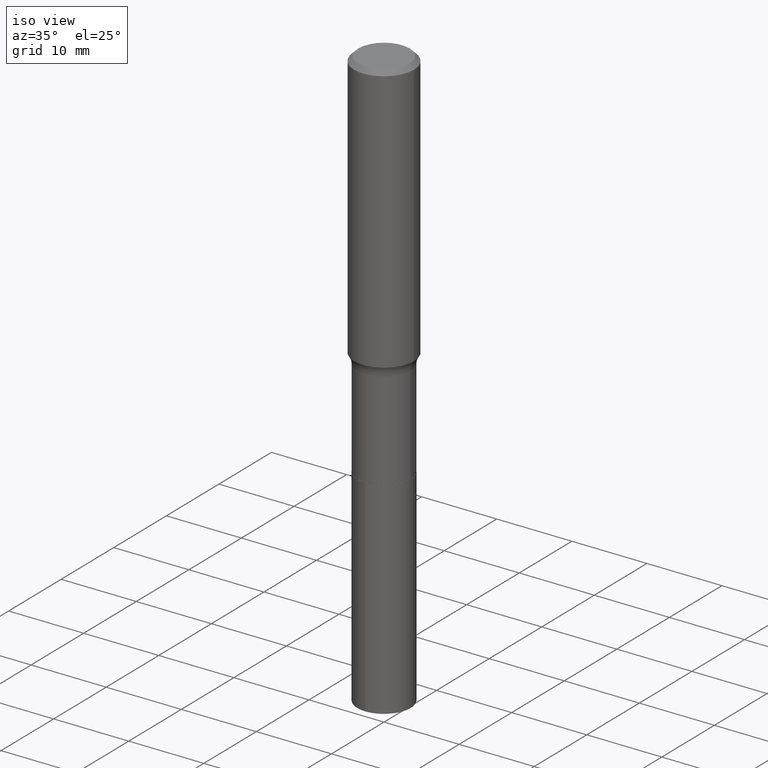
[diagram: clean part render]
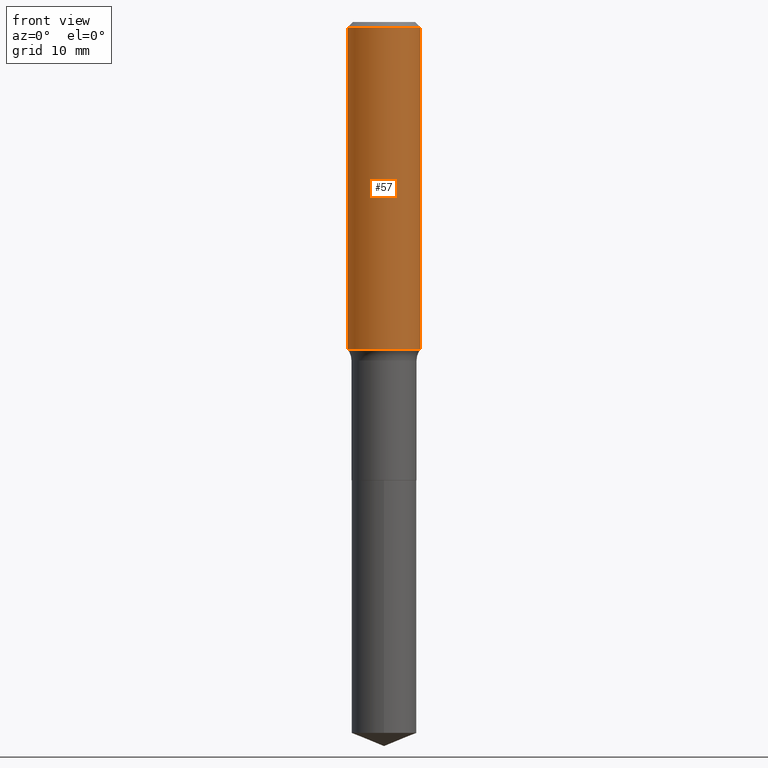
[diagram: tour spotlight — one face highlighted and labeled with its STEP entity id]
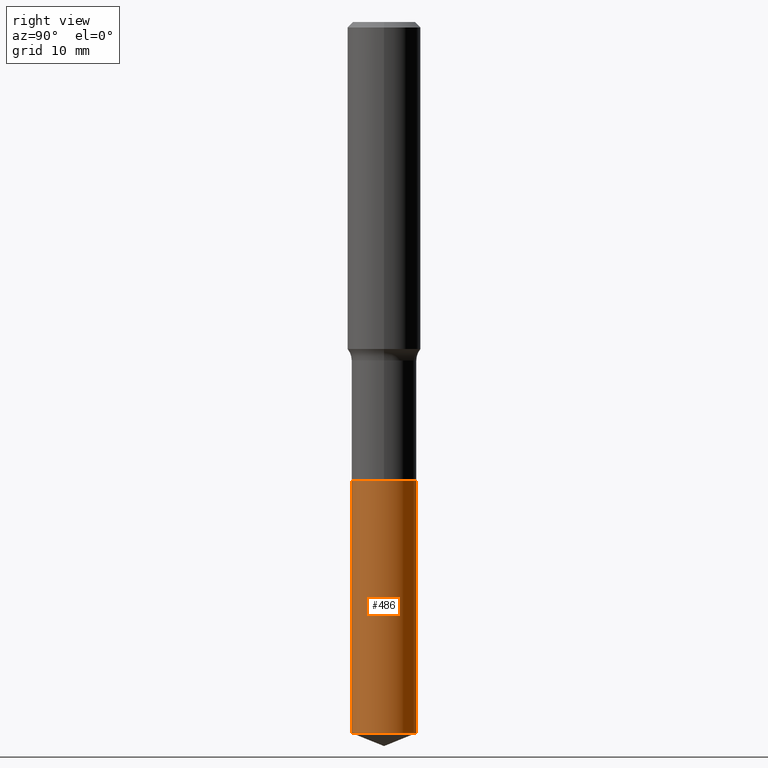
[diagram: tour spotlight — one face highlighted and labeled with its STEP entity id]
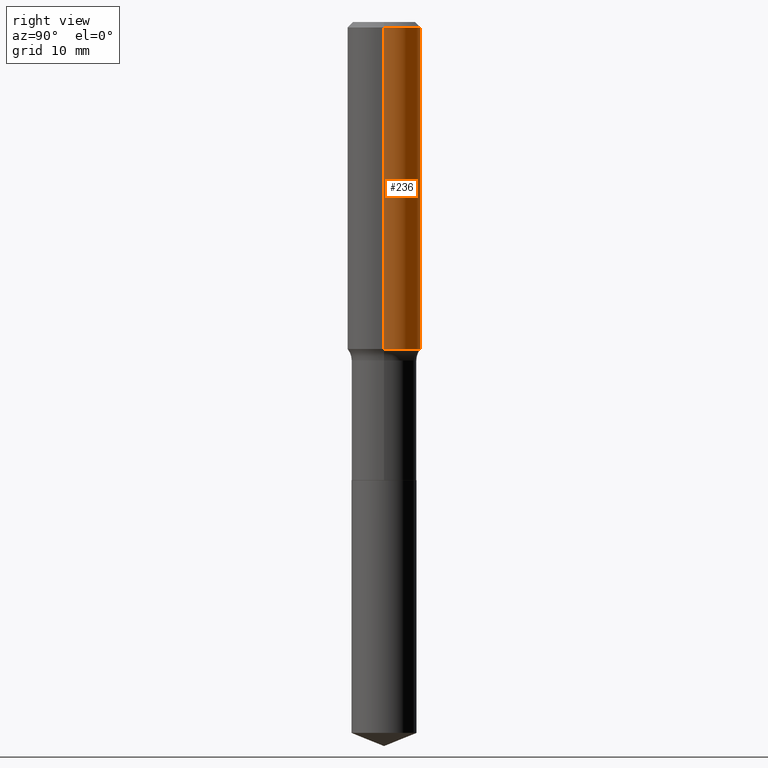
[diagram: tour spotlight — one face highlighted and labeled with its STEP entity id]
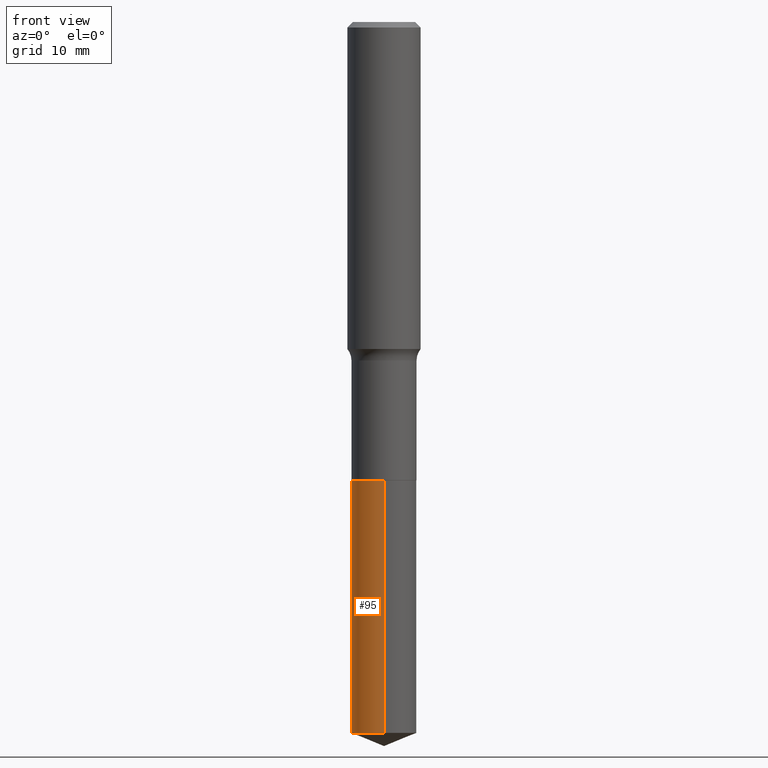
[diagram: tour spotlight — one face highlighted and labeled with its STEP entity id]
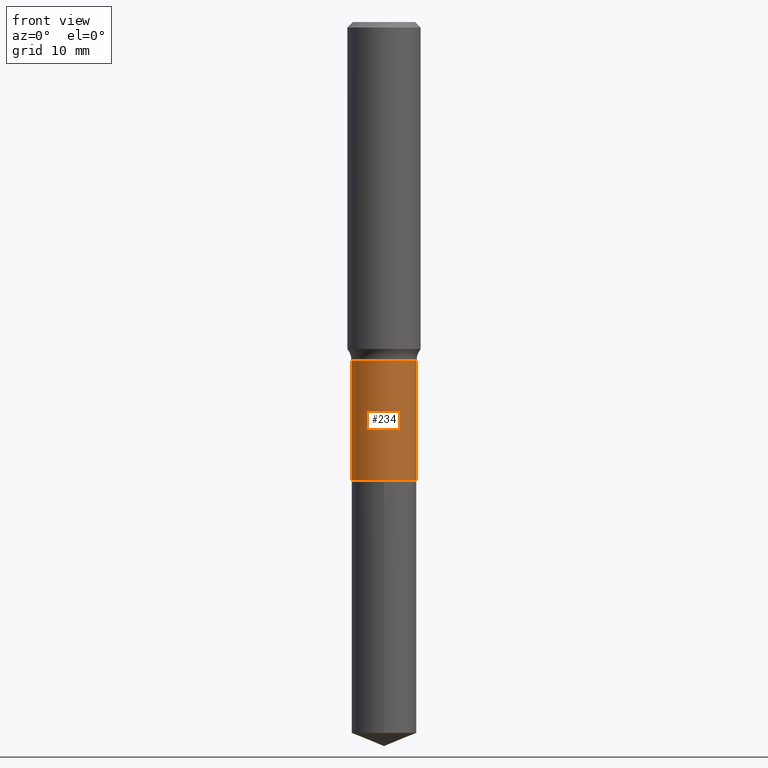
[diagram: tour spotlight — one face highlighted and labeled with its STEP entity id]
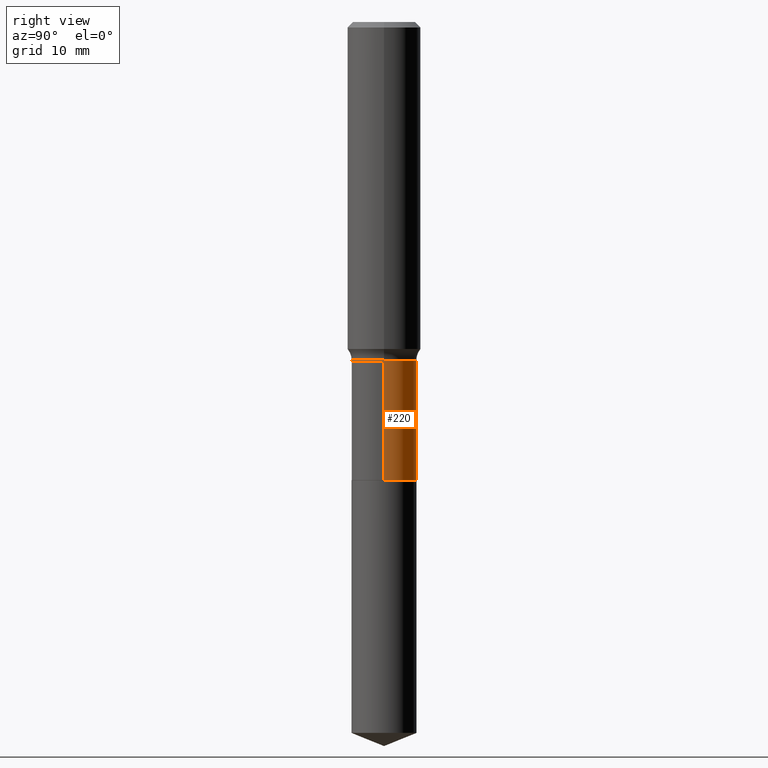
[diagram: tour spotlight — one face highlighted and labeled with its STEP entity id]
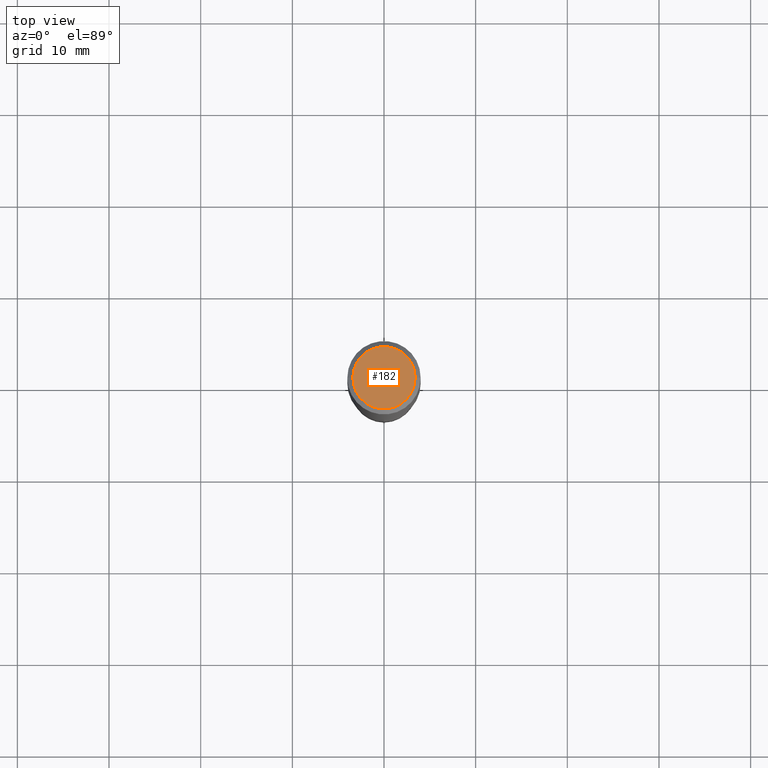
[diagram: tour spotlight — one face highlighted and labeled with its STEP entity id]
A machine part: a face-by-face anatomy tour. The part has 17 B-rep faces; the first image is the clean iso view, then the 7 largest visible faces are spotlighted one at a time (largest first), each with its STEP entity span.

Face 1 — front view, entity #57. In plain terms, the highlighted cylindrical surface (partial cylindrical patch) has radius 4.0005 mm, axis along (-0, 0, 1).
Definition (entity closure, byte-faithful):
#4 = EDGE_CURVE ( 'NONE', #332, #388, #212, .T. ) ;
#14 = EDGE_LOOP ( 'NONE', ( #288, #355, #254, #174 ) ) ;
#16 = AXIS2_PLACEMENT_3D ( 'NONE', #386, #336, #187 ) ;
#30 = CYLINDRICAL_SURFACE ( 'NONE', #466, 0.1575000000000000844 ) ;
#50 = VERTEX_POINT ( 'NONE', #300 ) ;
#53 = CARTESIAN_POINT ( 'NONE',  ( 0.1575000000000001954, -6.003821310304095983E-15, -1.404562766528599793 ) ) ;
#57 = ADVANCED_FACE ( 'NONE', ( #109 ), #30, .T. ) ;
#61 = CARTESIAN_POINT ( 'NONE',  ( -0.1575000000000001954, -3.784899879746348533E-15, -1.404562766528599793 ) ) ;
#73 = DIRECTION ( 'NONE',  ( 1.000000000000000000, -6.982962677686267499E-15, 4.876176775795936353E-29 ) ) ;
#104 = VECTOR ( 'NONE', #227, 39.37007874015748143 ) ;
#109 = FACE_OUTER_BOUND ( 'NONE', #14, .T. ) ;
#111 = VERTEX_POINT ( 'NONE', #459 ) ;
#146 = EDGE_CURVE ( 'NONE', #388, #50, #305, .T. ) ;
#147 = EDGE_CURVE ( 'NONE', #332, #111, #380, .T. ) ;
#163 = DIRECTION ( 'NONE',  ( -2.445468806185136597E-29, 3.491481338843145583E-15, 1.000000000000000000 ) ) ;
#174 = ORIENTED_EDGE ( 'NONE', *, *, #465, .F. ) ;
#187 = DIRECTION ( 'NONE',  ( 1.000000000000000000, -6.982962677686267499E-15, 0.000000000000000000 ) ) ;
#212 = CIRCLE ( 'NONE', #16, 0.1575000000000001676 ) ;
#227 = DIRECTION ( 'NONE',  ( -2.445468806185136877E-29, 3.491481338843145188E-15, 1.000000000000000000 ) ) ;
#228 = DIRECTION ( 'NONE',  ( -2.445468806185136877E-29, 3.491481338843145188E-15, 1.000000000000000000 ) ) ;
#246 = DIRECTION ( 'NONE',  ( 1.000000000000000000, -6.982962677686265922E-15, 0.000000000000000000 ) ) ;
#254 = ORIENTED_EDGE ( 'NONE', *, *, #146, .T. ) ;
#256 = DIRECTION ( 'NONE',  ( -2.445468806185136597E-29, 3.491481338843145583E-15, 1.000000000000000000 ) ) ;
#265 = CARTESIAN_POINT ( 'NONE',  ( 0.000000000000000000, 0.000000000000000000, 0.000000000000000000 ) ) ;
#288 = ORIENTED_EDGE ( 'NONE', *, *, #147, .F. ) ;
#300 = CARTESIAN_POINT ( 'NONE',  ( 0.1575000000000000011, -1.182302868365756679E-15, -0.02362500000000014588 ) ) ;
#305 = LINE ( 'NONE', #378, #104 ) ;
#319 = CARTESIAN_POINT ( 'NONE',  ( 5.777420054612421104E-31, -8.248624663016984002E-17, -0.02362500000000014588 ) ) ;
#332 = VERTEX_POINT ( 'NONE', #61 ) ;
#336 = DIRECTION ( 'NONE',  ( -2.445468806185136597E-29, 3.491481338843145583E-15, 1.000000000000000000 ) ) ;
#343 = CARTESIAN_POINT ( 'NONE',  ( -0.1575000000000000844, 1.119104808822158392E-15, -7.747322767151481189E-30 ) ) ;
#355 = ORIENTED_EDGE ( 'NONE', *, *, #4, .T. ) ;
#378 = CARTESIAN_POINT ( 'NONE',  ( 0.1575000000000000844, -1.099816621735587677E-15, 7.679978421878603638E-30 ) ) ;
#380 = LINE ( 'NONE', #343, #390 ) ;
#386 = CARTESIAN_POINT ( 'NONE',  ( 3.434814431874787164E-29, -4.904004688568507714E-15, -1.404562766528599793 ) ) ;
#388 = VERTEX_POINT ( 'NONE', #53 ) ;
#390 = VECTOR ( 'NONE', #228, 39.37007874015748143 ) ;
#431 = CIRCLE ( 'NONE', #443, 0.1575000000000000011 ) ;
#443 = AXIS2_PLACEMENT_3D ( 'NONE', #319, #163, #246 ) ;
#459 = CARTESIAN_POINT ( 'NONE',  ( -0.1575000000000000011, -1.374140658777180163E-15, -0.02362500000000014588 ) ) ;
#465 = EDGE_CURVE ( 'NONE', #111, #50, #431, .T. ) ;
#466 = AXIS2_PLACEMENT_3D ( 'NONE', #265, #256, #73 ) ;

Face 2 — right view, entity #486. In plain terms, the highlighted cylindrical surface (edge-blend (fillet) strip) has radius 3.5497 mm, axis along (-0, 0, 1).
Definition (entity closure, byte-faithful):
#11 = DIRECTION ( 'NONE',  ( -6.982962677686265133E-15, -1.000000000000000000, 3.909621457837943227E-15 ) ) ;
#12 = CARTESIAN_POINT ( 'NONE',  ( 4.813905344975441835E-29, -6.872981015512731707E-15, -1.968500000000000139 ) ) ;
#17 = AXIS2_PLACEMENT_3D ( 'NONE', #278, #273, #94 ) ;
#39 = ORIENTED_EDGE ( 'NONE', *, *, #409, .F. ) ;
#54 = ORIENTED_EDGE ( 'NONE', *, *, #76, .F. ) ;
#65 = CARTESIAN_POINT ( 'NONE',  ( -9.758690342065812491E-16, -0.1397500000000106990, -3.053737334939536030 ) ) ;
#76 = EDGE_CURVE ( 'NONE', #127, #178, #487, .T. ) ;
#88 = ORIENTED_EDGE ( 'NONE', *, *, #196, .T. ) ;
#91 = CARTESIAN_POINT ( 'NONE',  ( 9.929834732247880261E-16, 0.1397499999999931297, -1.968500000000000583 ) ) ;
#94 = DIRECTION ( 'NONE',  ( -6.982962677686265133E-15, -1.000000000000000000, 3.909621457837943227E-15 ) ) ;
#115 = VECTOR ( 'NONE', #240, 39.37007874015748143 ) ;
#127 = VERTEX_POINT ( 'NONE', #65 ) ;
#130 = CARTESIAN_POINT ( 'NONE',  ( 9.929834732248148474E-16, 0.1397499999999893827, -3.053737334939536918 ) ) ;
#131 = ORIENTED_EDGE ( 'NONE', *, *, #446, .T. ) ;
#138 = AXIS2_PLACEMENT_3D ( 'NONE', #233, #314, #11 ) ;
#178 = VERTEX_POINT ( 'NONE', #338 ) ;
#196 = EDGE_CURVE ( 'NONE', #127, #437, #455, .T. ) ;
#207 = FACE_OUTER_BOUND ( 'NONE', #395, .T. ) ;
#219 = CARTESIAN_POINT ( 'NONE',  ( -9.758690342066074787E-16, -0.1397500000000068965, -1.968499999999999472 ) ) ;
#233 = CARTESIAN_POINT ( 'NONE',  ( 7.467726146211027916E-29, -1.066220045606786158E-14, -3.053737334939536474 ) ) ;
#240 = DIRECTION ( 'NONE',  ( -2.445382881508996682E-29, 3.491604387869906519E-15, 1.000000000000000000 ) ) ;
#250 = CIRCLE ( 'NONE', #17, 0.1397500000000000131 ) ;
#266 = VECTOR ( 'NONE', #377, 39.37007874015748143 ) ;
#273 = DIRECTION ( 'NONE',  ( -2.445382881508996682E-29, 3.491604387869906913E-15, 1.000000000000000000 ) ) ;
#278 = CARTESIAN_POINT ( 'NONE',  ( 4.813905344975441835E-29, -6.872981015512731707E-15, -1.968500000000000139 ) ) ;
#314 = DIRECTION ( 'NONE',  ( -2.445382881508996682E-29, 3.491604387869906913E-15, 1.000000000000000000 ) ) ;
#316 = VERTEX_POINT ( 'NONE', #492 ) ;
#338 = CARTESIAN_POINT ( 'NONE',  ( -9.758690342066074787E-16, -0.1397500000000068965, -1.968499999999999472 ) ) ;
#339 = DIRECTION ( 'NONE',  ( -2.445382881508996682E-29, 3.491604387869906913E-15, 1.000000000000000000 ) ) ;
#349 = DIRECTION ( 'NONE',  ( -6.982962677686265133E-15, -1.000000000000000000, 3.909621457837943227E-15 ) ) ;
#366 = CYLINDRICAL_SURFACE ( 'NONE', #382, 0.1397500000000000131 ) ;
#377 = DIRECTION ( 'NONE',  ( -2.445382881508996682E-29, 3.491604387869906519E-15, 1.000000000000000000 ) ) ;
#382 = AXIS2_PLACEMENT_3D ( 'NONE', #12, #339, #349 ) ;
#391 = LINE ( 'NONE', #91, #115 ) ;
#395 = EDGE_LOOP ( 'NONE', ( #88, #131, #39, #54 ) ) ;
#409 = EDGE_CURVE ( 'NONE', #178, #316, #250, .T. ) ;
#437 = VERTEX_POINT ( 'NONE', #130 ) ;
#446 = EDGE_CURVE ( 'NONE', #437, #316, #391, .T. ) ;
#455 = CIRCLE ( 'NONE', #138, 0.1397500000000000131 ) ;
#486 = ADVANCED_FACE ( 'NONE', ( #207 ), #366, .T. ) ;
#487 = LINE ( 'NONE', #219, #266 ) ;
#492 = CARTESIAN_POINT ( 'NONE',  ( 9.929834732248148474E-16, 0.1397499999999931575, -1.968500000000000583 ) ) ;

Face 3 — right view, entity #236. In plain terms, the highlighted cylindrical surface (partial cylindrical patch) has radius 4.0005 mm, axis along (-0, 0, 1).
Definition (entity closure, byte-faithful):
#6 = EDGE_LOOP ( 'NONE', ( #142, #45, #279, #154 ) ) ;
#45 = ORIENTED_EDGE ( 'NONE', *, *, #147, .T. ) ;
#50 = VERTEX_POINT ( 'NONE', #300 ) ;
#51 = CARTESIAN_POINT ( 'NONE',  ( 0.000000000000000000, 0.000000000000000000, 0.000000000000000000 ) ) ;
#53 = CARTESIAN_POINT ( 'NONE',  ( 0.1575000000000001954, -6.003821310304095983E-15, -1.404562766528599793 ) ) ;
#61 = CARTESIAN_POINT ( 'NONE',  ( -0.1575000000000001954, -3.784899879746348533E-15, -1.404562766528599793 ) ) ;
#74 = DIRECTION ( 'NONE',  ( -2.445468806185136597E-29, 3.491481338843145583E-15, 1.000000000000000000 ) ) ;
#104 = VECTOR ( 'NONE', #227, 39.37007874015748143 ) ;
#105 = AXIS2_PLACEMENT_3D ( 'NONE', #423, #74, #156 ) ;
#111 = VERTEX_POINT ( 'NONE', #459 ) ;
#133 = DIRECTION ( 'NONE',  ( 1.000000000000000000, -6.982962677686265922E-15, 0.000000000000000000 ) ) ;
#142 = ORIENTED_EDGE ( 'NONE', *, *, #330, .T. ) ;
#146 = EDGE_CURVE ( 'NONE', #388, #50, #305, .T. ) ;
#147 = EDGE_CURVE ( 'NONE', #332, #111, #380, .T. ) ;
#154 = ORIENTED_EDGE ( 'NONE', *, *, #146, .F. ) ;
#156 = DIRECTION ( 'NONE',  ( 1.000000000000000000, -6.982962677686267499E-15, 0.000000000000000000 ) ) ;
#159 = FACE_OUTER_BOUND ( 'NONE', #6, .T. ) ;
#194 = AXIS2_PLACEMENT_3D ( 'NONE', #51, #396, #317 ) ;
#199 = CARTESIAN_POINT ( 'NONE',  ( 5.777420054612421104E-31, -8.248624663016984002E-17, -0.02362500000000014588 ) ) ;
#206 = AXIS2_PLACEMENT_3D ( 'NONE', #199, #404, #133 ) ;
#227 = DIRECTION ( 'NONE',  ( -2.445468806185136877E-29, 3.491481338843145188E-15, 1.000000000000000000 ) ) ;
#228 = DIRECTION ( 'NONE',  ( -2.445468806185136877E-29, 3.491481338843145188E-15, 1.000000000000000000 ) ) ;
#236 = ADVANCED_FACE ( 'NONE', ( #159 ), #427, .T. ) ;
#237 = CIRCLE ( 'NONE', #206, 0.1575000000000000011 ) ;
#279 = ORIENTED_EDGE ( 'NONE', *, *, #406, .F. ) ;
#300 = CARTESIAN_POINT ( 'NONE',  ( 0.1575000000000000011, -1.182302868365756679E-15, -0.02362500000000014588 ) ) ;
#305 = LINE ( 'NONE', #378, #104 ) ;
#317 = DIRECTION ( 'NONE',  ( 1.000000000000000000, -6.982962677686267499E-15, 4.876176775795936353E-29 ) ) ;
#330 = EDGE_CURVE ( 'NONE', #388, #332, #488, .T. ) ;
#332 = VERTEX_POINT ( 'NONE', #61 ) ;
#343 = CARTESIAN_POINT ( 'NONE',  ( -0.1575000000000000844, 1.119104808822158392E-15, -7.747322767151481189E-30 ) ) ;
#378 = CARTESIAN_POINT ( 'NONE',  ( 0.1575000000000000844, -1.099816621735587677E-15, 7.679978421878603638E-30 ) ) ;
#380 = LINE ( 'NONE', #343, #390 ) ;
#388 = VERTEX_POINT ( 'NONE', #53 ) ;
#390 = VECTOR ( 'NONE', #228, 39.37007874015748143 ) ;
#396 = DIRECTION ( 'NONE',  ( -2.445468806185136597E-29, 3.491481338843145583E-15, 1.000000000000000000 ) ) ;
#404 = DIRECTION ( 'NONE',  ( -2.445468806185136597E-29, 3.491481338843145583E-15, 1.000000000000000000 ) ) ;
#406 = EDGE_CURVE ( 'NONE', #50, #111, #237, .T. ) ;
#423 = CARTESIAN_POINT ( 'NONE',  ( 3.434814431874787164E-29, -4.904004688568507714E-15, -1.404562766528599793 ) ) ;
#427 = CYLINDRICAL_SURFACE ( 'NONE', #194, 0.1575000000000000844 ) ;
#459 = CARTESIAN_POINT ( 'NONE',  ( -0.1575000000000000011, -1.374140658777180163E-15, -0.02362500000000014588 ) ) ;
#488 = CIRCLE ( 'NONE', #105, 0.1575000000000001676 ) ;

Face 4 — front view, entity #95. In plain terms, the highlighted cylindrical surface (edge-blend (fillet) strip) has radius 3.5497 mm, axis along (-0, 0, 1).
Definition (entity closure, byte-faithful):
#23 = CIRCLE ( 'NONE', #483, 0.1397500000000000131 ) ;
#47 = DIRECTION ( 'NONE',  ( -6.982962677686265133E-15, -1.000000000000000000, 3.909621457837943227E-15 ) ) ;
#64 = AXIS2_PLACEMENT_3D ( 'NONE', #215, #348, #224 ) ;
#65 = CARTESIAN_POINT ( 'NONE',  ( -9.758690342065812491E-16, -0.1397500000000106990, -3.053737334939536030 ) ) ;
#70 = CIRCLE ( 'NONE', #64, 0.1397500000000000131 ) ;
#76 = EDGE_CURVE ( 'NONE', #127, #178, #487, .T. ) ;
#80 = ORIENTED_EDGE ( 'NONE', *, *, #173, .T. ) ;
#91 = CARTESIAN_POINT ( 'NONE',  ( 9.929834732247880261E-16, 0.1397499999999931297, -1.968500000000000583 ) ) ;
#95 = ADVANCED_FACE ( 'NONE', ( #259 ), #301, .T. ) ;
#114 = AXIS2_PLACEMENT_3D ( 'NONE', #152, #414, #456 ) ;
#115 = VECTOR ( 'NONE', #240, 39.37007874015748143 ) ;
#127 = VERTEX_POINT ( 'NONE', #65 ) ;
#130 = CARTESIAN_POINT ( 'NONE',  ( 9.929834732248148474E-16, 0.1397499999999893827, -3.053737334939536918 ) ) ;
#152 = CARTESIAN_POINT ( 'NONE',  ( 4.813905344975441835E-29, -6.872981015512731707E-15, -1.968500000000000139 ) ) ;
#161 = CARTESIAN_POINT ( 'NONE',  ( 4.813905344975441835E-29, -6.872981015512731707E-15, -1.968500000000000139 ) ) ;
#164 = ORIENTED_EDGE ( 'NONE', *, *, #76, .T. ) ;
#173 = EDGE_CURVE ( 'NONE', #437, #127, #70, .T. ) ;
#178 = VERTEX_POINT ( 'NONE', #338 ) ;
#193 = EDGE_LOOP ( 'NONE', ( #429, #80, #164, #471 ) ) ;
#215 = CARTESIAN_POINT ( 'NONE',  ( 7.467726146211027916E-29, -1.066220045606786158E-14, -3.053737334939536474 ) ) ;
#219 = CARTESIAN_POINT ( 'NONE',  ( -9.758690342066074787E-16, -0.1397500000000068965, -1.968499999999999472 ) ) ;
#224 = DIRECTION ( 'NONE',  ( -6.982962677686265133E-15, -1.000000000000000000, 3.909621457837943227E-15 ) ) ;
#240 = DIRECTION ( 'NONE',  ( -2.445382881508996682E-29, 3.491604387869906519E-15, 1.000000000000000000 ) ) ;
#259 = FACE_OUTER_BOUND ( 'NONE', #193, .T. ) ;
#266 = VECTOR ( 'NONE', #377, 39.37007874015748143 ) ;
#301 = CYLINDRICAL_SURFACE ( 'NONE', #114, 0.1397500000000000131 ) ;
#316 = VERTEX_POINT ( 'NONE', #492 ) ;
#338 = CARTESIAN_POINT ( 'NONE',  ( -9.758690342066074787E-16, -0.1397500000000068965, -1.968499999999999472 ) ) ;
#348 = DIRECTION ( 'NONE',  ( -2.445382881508996682E-29, 3.491604387869906913E-15, 1.000000000000000000 ) ) ;
#377 = DIRECTION ( 'NONE',  ( -2.445382881508996682E-29, 3.491604387869906519E-15, 1.000000000000000000 ) ) ;
#391 = LINE ( 'NONE', #91, #115 ) ;
#414 = DIRECTION ( 'NONE',  ( -2.445382881508996682E-29, 3.491604387869906913E-15, 1.000000000000000000 ) ) ;
#428 = DIRECTION ( 'NONE',  ( -2.445382881508996682E-29, 3.491604387869906913E-15, 1.000000000000000000 ) ) ;
#429 = ORIENTED_EDGE ( 'NONE', *, *, #446, .F. ) ;
#437 = VERTEX_POINT ( 'NONE', #130 ) ;
#446 = EDGE_CURVE ( 'NONE', #437, #316, #391, .T. ) ;
#451 = EDGE_CURVE ( 'NONE', #316, #178, #23, .T. ) ;
#456 = DIRECTION ( 'NONE',  ( -6.982962677686265133E-15, -1.000000000000000000, 3.909621457837943227E-15 ) ) ;
#471 = ORIENTED_EDGE ( 'NONE', *, *, #451, .F. ) ;
#483 = AXIS2_PLACEMENT_3D ( 'NONE', #161, #428, #47 ) ;
#487 = LINE ( 'NONE', #219, #266 ) ;
#492 = CARTESIAN_POINT ( 'NONE',  ( 9.929834732248148474E-16, 0.1397499999999931575, -1.968500000000000583 ) ) ;

Face 5 — front view, entity #234. In plain terms, the highlighted cylindrical surface (edge-blend (fillet) strip) has radius 3.5496 mm, axis along (-0, 0, 1).
Definition (entity closure, byte-faithful):
#3 = DIRECTION ( 'NONE',  ( -2.445468806185136597E-29, 3.491481338843145583E-15, 1.000000000000000000 ) ) ;
#5 = CARTESIAN_POINT ( 'NONE',  ( 0.1397499999999999576, -9.758690342066554020E-16, 6.814457044174817776E-30 ) ) ;
#7 = CARTESIAN_POINT ( 'NONE',  ( 0.000000000000000000, 0.000000000000000000, 0.000000000000000000 ) ) ;
#20 = ORIENTED_EDGE ( 'NONE', *, *, #78, .T. ) ;
#25 = CARTESIAN_POINT ( 'NONE',  ( 4.812682610572349594E-29, -6.871235274843310993E-15, -1.968000000000000194 ) ) ;
#38 = VERTEX_POINT ( 'NONE', #310 ) ;
#49 = CARTESIAN_POINT ( 'NONE',  ( -0.1397499999999999298, -4.981115671602824904E-15, -1.454100000000000170 ) ) ;
#59 = CIRCLE ( 'NONE', #340, 0.1397500000000000131 ) ;
#72 = EDGE_CURVE ( 'NONE', #442, #449, #185, .T. ) ;
#78 = EDGE_CURVE ( 'NONE', #442, #307, #59, .T. ) ;
#86 = EDGE_CURVE ( 'NONE', #449, #38, #290, .T. ) ;
#103 = CARTESIAN_POINT ( 'NONE',  ( 3.555956191073807244E-29, -5.076963014811818627E-15, -1.454100000000000170 ) ) ;
#126 = DIRECTION ( 'NONE',  ( -2.445468806185136877E-29, 3.491481338843145188E-15, 1.000000000000000000 ) ) ;
#148 = DIRECTION ( 'NONE',  ( -2.445468806185136877E-29, 3.491481338843145188E-15, 1.000000000000000000 ) ) ;
#162 = DIRECTION ( 'NONE',  ( 1.000000000000000000, -6.982962677686265922E-15, 4.876176775795935232E-29 ) ) ;
#167 = AXIS2_PLACEMENT_3D ( 'NONE', #103, #420, #490 ) ;
#181 = DIRECTION ( 'NONE',  ( -2.445468806185136597E-29, 3.491481338843145583E-15, 1.000000000000000000 ) ) ;
#185 = LINE ( 'NONE', #337, #217 ) ;
#188 = ORIENTED_EDGE ( 'NONE', *, *, #379, .T. ) ;
#192 = FACE_OUTER_BOUND ( 'NONE', #407, .T. ) ;
#217 = VECTOR ( 'NONE', #148, 39.37007874015748143 ) ;
#234 = ADVANCED_FACE ( 'NONE', ( #192 ), #360, .T. ) ;
#290 = CIRCLE ( 'NONE', #167, 0.1397499999999999298 ) ;
#291 = ORIENTED_EDGE ( 'NONE', *, *, #72, .F. ) ;
#307 = VERTEX_POINT ( 'NONE', #460 ) ;
#310 = CARTESIAN_POINT ( 'NONE',  ( 0.1397499999999999298, -6.052832049018473832E-15, -1.454100000000000170 ) ) ;
#333 = AXIS2_PLACEMENT_3D ( 'NONE', #7, #3, #162 ) ;
#334 = ORIENTED_EDGE ( 'NONE', *, *, #86, .F. ) ;
#337 = CARTESIAN_POINT ( 'NONE',  ( -0.1397499999999999576, 9.929834732247397084E-16, -6.874211788631229584E-30 ) ) ;
#340 = AXIS2_PLACEMENT_3D ( 'NONE', #25, #181, #452 ) ;
#360 = CYLINDRICAL_SURFACE ( 'NONE', #333, 0.1397499999999999576 ) ;
#379 = EDGE_CURVE ( 'NONE', #307, #38, #433, .T. ) ;
#392 = VECTOR ( 'NONE', #126, 39.37007874015748143 ) ;
#407 = EDGE_LOOP ( 'NONE', ( #291, #20, #188, #334 ) ) ;
#420 = DIRECTION ( 'NONE',  ( -2.445468806185136597E-29, 3.491481338843145583E-15, 1.000000000000000000 ) ) ;
#433 = LINE ( 'NONE', #5, #392 ) ;
#436 = CARTESIAN_POINT ( 'NONE',  ( -0.1397500000000000131, -4.981115671602823326E-15, -1.968000000000000194 ) ) ;
#442 = VERTEX_POINT ( 'NONE', #436 ) ;
#449 = VERTEX_POINT ( 'NONE', #49 ) ;
#452 = DIRECTION ( 'NONE',  ( 1.000000000000000000, -6.982962677686265133E-15, 0.000000000000000000 ) ) ;
#460 = CARTESIAN_POINT ( 'NONE',  ( 0.1397500000000000131, -7.847104309049966986E-15, -1.968000000000000194 ) ) ;
#490 = DIRECTION ( 'NONE',  ( 1.000000000000000000, -6.982962677686269077E-15, 0.000000000000000000 ) ) ;

Face 6 — right view, entity #220. In plain terms, the highlighted cylindrical surface (edge-blend (fillet) strip) has radius 3.5496 mm, axis along (-0, 0, 1).
Definition (entity closure, byte-faithful):
#5 = CARTESIAN_POINT ( 'NONE',  ( 0.1397499999999999576, -9.758690342066554020E-16, 6.814457044174817776E-30 ) ) ;
#38 = VERTEX_POINT ( 'NONE', #310 ) ;
#40 = CARTESIAN_POINT ( 'NONE',  ( 0.000000000000000000, 0.000000000000000000, 0.000000000000000000 ) ) ;
#49 = CARTESIAN_POINT ( 'NONE',  ( -0.1397499999999999298, -4.981115671602824904E-15, -1.454100000000000170 ) ) ;
#72 = EDGE_CURVE ( 'NONE', #442, #449, #185, .T. ) ;
#82 = DIRECTION ( 'NONE',  ( 1.000000000000000000, -6.982962677686265133E-15, 0.000000000000000000 ) ) ;
#85 = FACE_OUTER_BOUND ( 'NONE', #304, .T. ) ;
#118 = CARTESIAN_POINT ( 'NONE',  ( 4.812682610572349594E-29, -6.871235274843310993E-15, -1.968000000000000194 ) ) ;
#126 = DIRECTION ( 'NONE',  ( -2.445468806185136877E-29, 3.491481338843145188E-15, 1.000000000000000000 ) ) ;
#134 = ORIENTED_EDGE ( 'NONE', *, *, #379, .F. ) ;
#148 = DIRECTION ( 'NONE',  ( -2.445468806185136877E-29, 3.491481338843145188E-15, 1.000000000000000000 ) ) ;
#151 = DIRECTION ( 'NONE',  ( -2.445468806185136597E-29, 3.491481338843145583E-15, 1.000000000000000000 ) ) ;
#160 = EDGE_CURVE ( 'NONE', #38, #449, #176, .T. ) ;
#176 = CIRCLE ( 'NONE', #235, 0.1397499999999999298 ) ;
#177 = CIRCLE ( 'NONE', #403, 0.1397500000000000131 ) ;
#185 = LINE ( 'NONE', #337, #217 ) ;
#197 = DIRECTION ( 'NONE',  ( -2.445468806185136597E-29, 3.491481338843145583E-15, 1.000000000000000000 ) ) ;
#200 = ORIENTED_EDGE ( 'NONE', *, *, #160, .F. ) ;
#217 = VECTOR ( 'NONE', #148, 39.37007874015748143 ) ;
#220 = ADVANCED_FACE ( 'NONE', ( #85 ), #321, .T. ) ;
#235 = AXIS2_PLACEMENT_3D ( 'NONE', #489, #151, #383 ) ;
#243 = DIRECTION ( 'NONE',  ( 1.000000000000000000, -6.982962677686265922E-15, 4.876176775795935232E-29 ) ) ;
#270 = ORIENTED_EDGE ( 'NONE', *, *, #405, .T. ) ;
#304 = EDGE_LOOP ( 'NONE', ( #270, #410, #200, #134 ) ) ;
#307 = VERTEX_POINT ( 'NONE', #460 ) ;
#310 = CARTESIAN_POINT ( 'NONE',  ( 0.1397499999999999298, -6.052832049018473832E-15, -1.454100000000000170 ) ) ;
#321 = CYLINDRICAL_SURFACE ( 'NONE', #364, 0.1397499999999999576 ) ;
#337 = CARTESIAN_POINT ( 'NONE',  ( -0.1397499999999999576, 9.929834732247397084E-16, -6.874211788631229584E-30 ) ) ;
#364 = AXIS2_PLACEMENT_3D ( 'NONE', #40, #197, #243 ) ;
#379 = EDGE_CURVE ( 'NONE', #307, #38, #433, .T. ) ;
#383 = DIRECTION ( 'NONE',  ( 1.000000000000000000, -6.982962677686269077E-15, 0.000000000000000000 ) ) ;
#392 = VECTOR ( 'NONE', #126, 39.37007874015748143 ) ;
#403 = AXIS2_PLACEMENT_3D ( 'NONE', #118, #426, #82 ) ;
#405 = EDGE_CURVE ( 'NONE', #307, #442, #177, .T. ) ;
#410 = ORIENTED_EDGE ( 'NONE', *, *, #72, .T. ) ;
#426 = DIRECTION ( 'NONE',  ( -2.445468806185136597E-29, 3.491481338843145583E-15, 1.000000000000000000 ) ) ;
#433 = LINE ( 'NONE', #5, #392 ) ;
#436 = CARTESIAN_POINT ( 'NONE',  ( -0.1397500000000000131, -4.981115671602823326E-15, -1.968000000000000194 ) ) ;
#442 = VERTEX_POINT ( 'NONE', #436 ) ;
#449 = VERTEX_POINT ( 'NONE', #49 ) ;
#460 = CARTESIAN_POINT ( 'NONE',  ( 0.1397500000000000131, -7.847104309049966986E-15, -1.968000000000000194 ) ) ;
#489 = CARTESIAN_POINT ( 'NONE',  ( 3.555956191073807244E-29, -5.076963014811818627E-15, -1.454100000000000170 ) ) ;

Face 7 — top view, entity #182. In plain terms, the highlighted planar face has unit normal (0, -0, -1).
Definition (entity closure, byte-faithful):
#34 = ORIENTED_EDGE ( 'NONE', *, *, #295, .T. ) ;
#42 = CIRCLE ( 'NONE', #328, 0.1338749999999999940 ) ;
#52 = AXIS2_PLACEMENT_3D ( 'NONE', #306, #110, #153 ) ;
#62 = ORIENTED_EDGE ( 'NONE', *, *, #137, .T. ) ;
#90 = DIRECTION ( 'NONE',  ( 1.000000000000000000, -6.982962677686266711E-15, 4.876170806578254279E-29 ) ) ;
#99 = CARTESIAN_POINT ( 'NONE',  ( 0.1338749999999999940, -1.040731925365424925E-15, 4.101342130351390035E-18 ) ) ;
#110 = DIRECTION ( 'NONE',  ( 2.438088387897960049E-29, -3.491481338843145188E-15, -1.000000000000000000 ) ) ;
#112 = DIRECTION ( 'NONE',  ( 1.000000000000000000, -6.982962677686266711E-15, 4.876170806578254279E-29 ) ) ;
#137 = EDGE_CURVE ( 'NONE', #346, #293, #42, .T. ) ;
#149 = FACE_OUTER_BOUND ( 'NONE', #323, .T. ) ;
#153 = DIRECTION ( 'NONE',  ( -1.000000000000000000, 6.982962677686265922E-15, -4.876176775795935793E-29 ) ) ;
#182 = ADVANCED_FACE ( 'NONE', ( #149 ), #303, .F. ) ;
#213 = AXIS2_PLACEMENT_3D ( 'NONE', #312, #435, #90 ) ;
#223 = DIRECTION ( 'NONE',  ( -2.445468806185136597E-29, 3.491481338843145583E-15, 1.000000000000000000 ) ) ;
#231 = CARTESIAN_POINT ( 'NONE',  ( -1.002970424325032604E-46, 1.431975951230895391E-32, 4.101342130344482109E-18 ) ) ;
#293 = VERTEX_POINT ( 'NONE', #399 ) ;
#295 = EDGE_CURVE ( 'NONE', #293, #346, #408, .T. ) ;
#303 = PLANE ( 'NONE',  #52 ) ;
#306 = CARTESIAN_POINT ( 'NONE',  ( -5.014852121625163022E-47, 7.159879756154476955E-33, 2.050671065172241055E-18 ) ) ;
#312 = CARTESIAN_POINT ( 'NONE',  ( -1.002970424325032604E-46, 1.431975951230895391E-32, 4.101342130344482109E-18 ) ) ;
#323 = EDGE_LOOP ( 'NONE', ( #34, #62 ) ) ;
#328 = AXIS2_PLACEMENT_3D ( 'NONE', #231, #223, #112 ) ;
#346 = VERTEX_POINT ( 'NONE', #99 ) ;
#399 = CARTESIAN_POINT ( 'NONE',  ( -0.1338749999999999940, 9.760872517903331886E-16, 4.101342130337800673E-18 ) ) ;
#408 = CIRCLE ( 'NONE', #213, 0.1338749999999999940 ) ;
#435 = DIRECTION ( 'NONE',  ( -2.445468806185136597E-29, 3.491481338843145583E-15, 1.000000000000000000 ) ) ;